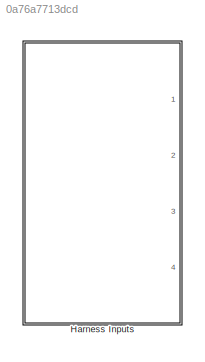
MODEL slx_0a76a7713dcd
KIND model
CONFIG AbsTol = auto
CONFIG EnableMultiTasking = off
CONFIG FixedStep = auto
CONFIG MaxStep = auto
CONFIG MinStep = auto
CONFIG RelTol = 1e-3
CONFIG SampleTimeConstraint = Unconstrained
CONFIG SolverName = VariableStepAuto
CONFIG StartTime = 0.0
CONFIG StopTime = 10.0
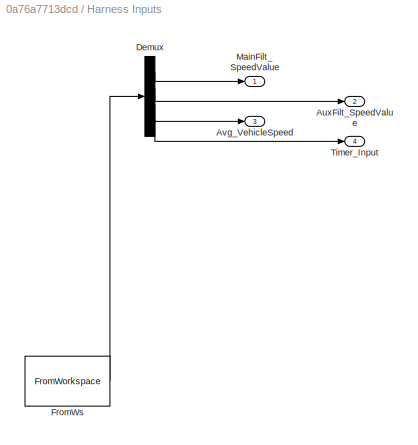
BLOCK [SubSystem] Harness Inputs
  ClipboardFcn = sigbuilder_block('clipboard');
  CloseFcn = sigbuilder_block('close');
  ContinueFcn = sigbuilder_block('continue');
  CopyFcn = sigbuilder_block('copy');
  DeleteFcn = sigbuilder_block('delete');
  LoadFcn = sigbuilder_block('load');
  MaskHideContents = on
  ModelCloseFcn = sigbuilder_block('modelClose');
  NameChangeFcn = sigbuilder_block('namechange');
  OpenFcn = sigbuilder_block('open');
  PauseFcn = sigbuilder_block('pause');
  Ports = [0, 4]
  PreSaveFcn = sigbuilder_block('preSave');
  RequestExecContextInheritance = off
  StartFcn = sigbuilder_block('start');
  StopFcn = sigbuilder_block('stop');
  Tag = STV Subsys
BLOCK [Outport] Harness Inputs/AuxFilt_SpeedValue
  Port = 2
  Tag = STV Outport
BLOCK [Outport] Harness Inputs/Avg_VehicleSpeed
  Port = 3
  Tag = STV Outport
BLOCK [Demux] Harness Inputs/Demux
  Ports = [1, 4]
  Tag = STV Demux
BLOCK [FromWorkspace] Harness Inputs/FromWs
  Tag = STV FromWs
  VariableName = tuvar
BLOCK [Outport] Harness Inputs/MainFilt_SpeedValue
  Tag = STV Outport
BLOCK [Outport] Harness Inputs/Timer_Input
  Port = 4
  Tag = STV Outport
LINE Harness Inputs/Demux:1 -> Harness Inputs/MainFilt_SpeedValue:1
LINE Harness Inputs/Demux:2 -> Harness Inputs/AuxFilt_SpeedValue:1
LINE Harness Inputs/Demux:3 -> Harness Inputs/Avg_VehicleSpeed:1
LINE Harness Inputs/Demux:4 -> Harness Inputs/Timer_Input:1
LINE Harness Inputs/FromWs:1 -> Harness Inputs/Demux:1
